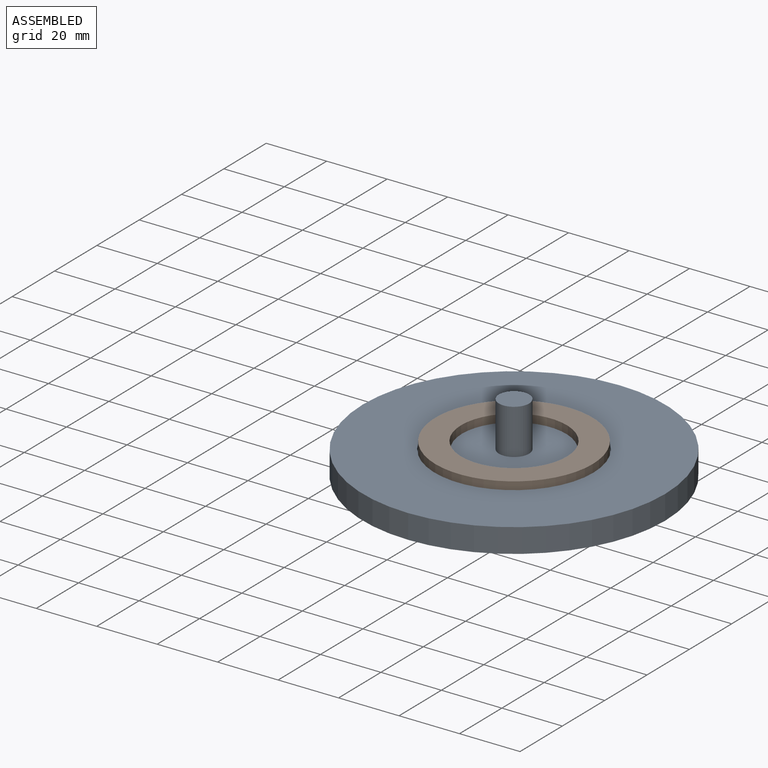
[diagram: assembled view]
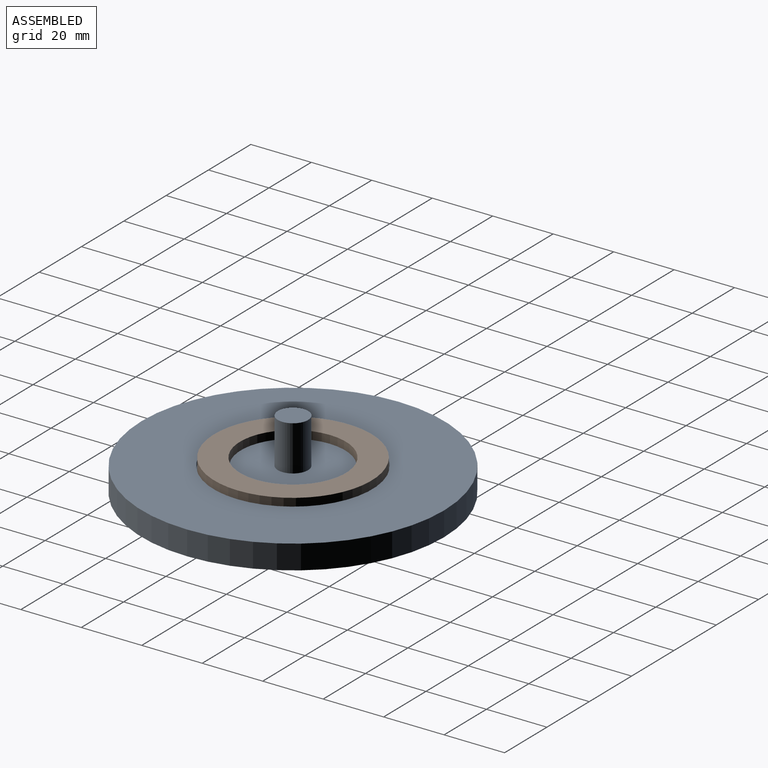
[diagram: assembled view, second angle]
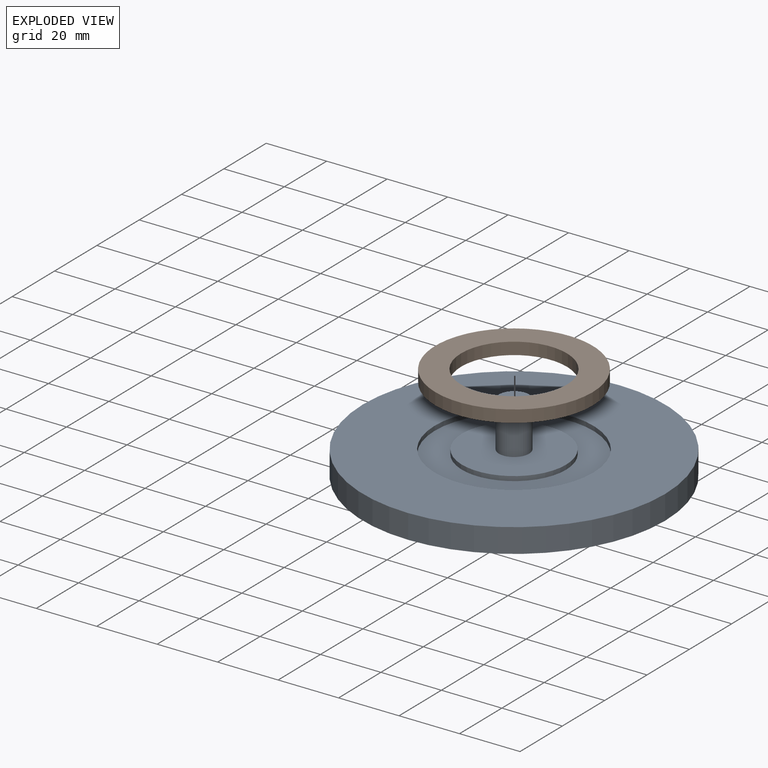
[diagram: exploded view]
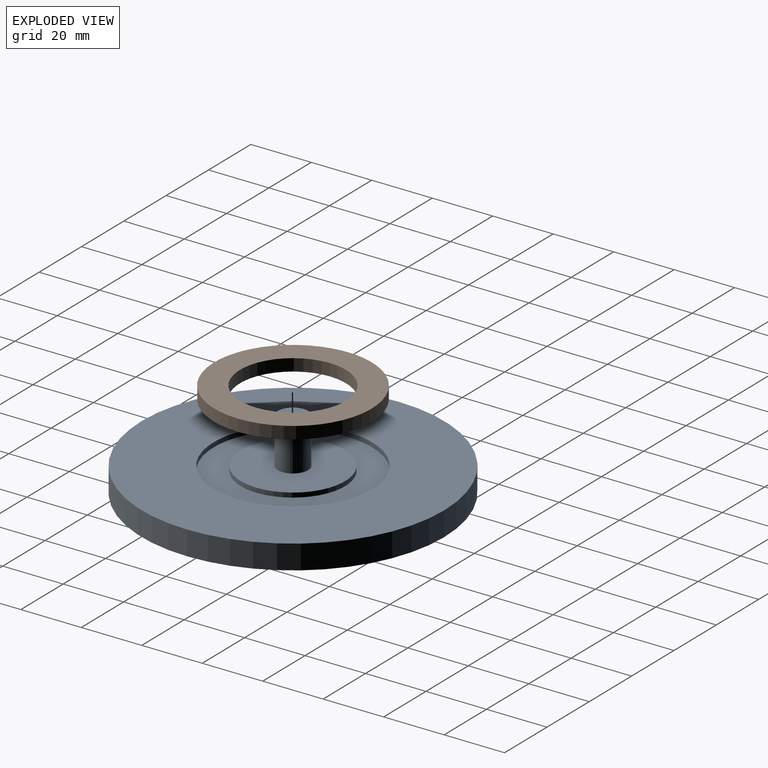
[diagram: exploded view, second angle]
ASSEMBLY  parts=2 mates=2
PART A: 9 faces, bbox 100x100x23 mm
  f0: cylinder r=50mm len=100mm, axis (0,0,-1), area 2513.3mm2, adj f1,f2
  f1: plane 100x100mm, normal (0,0,1), area 5689.2mm2, adj f0,f4
  f2: plane 100x100mm, normal (0,0,-1), area 7854mm2, adj f0
  f3: cylinder r=17.25mm len=34.5mm, axis (0,0,1), area 162.6mm2, adj f5,f6
  f4: cylinder r=26.25mm len=52.5mm, axis (0,0,1), area 247.4mm2, adj f1,f5
  f5: plane 52.5x52.5mm, normal (0,0,1), area 1229.9mm2, adj f3,f4
  f6: plane 34.5x34.5mm, normal (0,0,1), area 856.3mm2, adj f3,f7
  f7: cylinder r=5mm len=15mm, axis (0,0,-1), area 471.2mm2, adj f6,f8
  f8: plane 10x10mm, normal (0,0,1), area 78.5mm2, adj f7
PART B: 4 faces, bbox 52x52x4 mm
  f0: cylinder r=17.5mm len=35mm, axis (0,0,-1), area 439.8mm2, adj f2,f3
  f1: cylinder r=26mm len=52mm, axis (0,0,-1), area 653.5mm2, adj f2,f3
  f2: plane 52x52mm, normal (0,0,1), area 1161.6mm2, adj f0,f1
  f3: plane 52x52mm, normal (0,0,-1), area 1161.6mm2, adj f0,f1
PLACE A at identity fixed
PLACE B t=(0,0,6.5)mm
MATE cylindrical B.f1 <-> A.f0  axis (0,0,-1) through (0,0,8.5)mm
MATE planar A.f0 <-> B.f1  axis (0,0,1) through (0,0,6.5)mm
